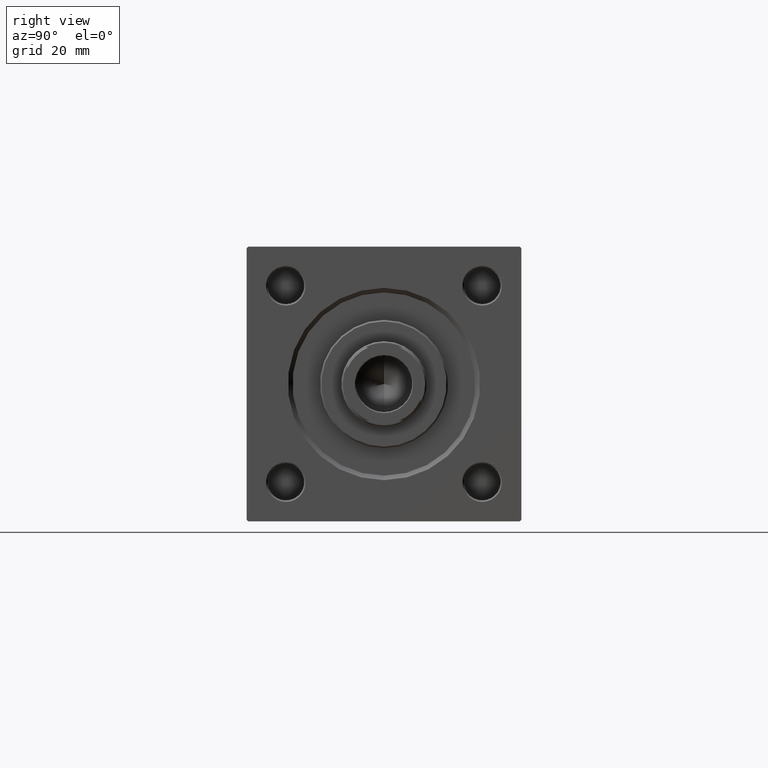
[diagram: clean part render]
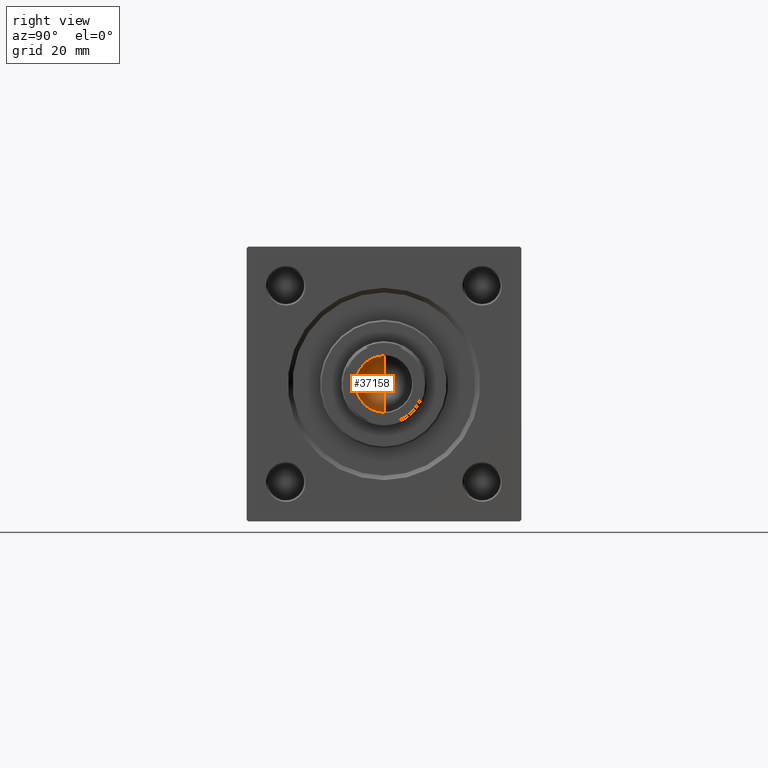
[diagram: same view with one face highlighted and labeled with its STEP entity id]
A machine part, right view. The second image highlights one B-rep face of the part: STEP entity #37158.
In plain terms, the highlighted conical surface has half-angle 59 deg.
Its self-contained STEP definition (entity closure, byte-faithful):
#1406 = LINE ( 'NONE', #20472, #24236 ) ;
#2275 = DIRECTION ( 'NONE',  ( 1.000000000000000000, 0.000000000000000000, 0.000000000000000000 ) ) ;
#3138 = VERTEX_POINT ( 'NONE', #11754 ) ;
#3510 = CARTESIAN_POINT ( 'NONE',  ( 0.000000000000000000, 0.000000000000000000, 114.9999999999999858 ) ) ;
#3806 = CARTESIAN_POINT ( 'NONE',  ( 9.249999999999994671, 0.000000000000000000, 114.9999999999999858 ) ) ;
#6561 = EDGE_CURVE ( 'NONE', #3138, #48343, #1406, .T. ) ;
#7413 = EDGE_LOOP ( 'NONE', ( #36063, #30304, #43435 ) ) ;
#9387 = CIRCLE ( 'NONE', #37782, 9.249999999999994671 ) ;
#9401 = CARTESIAN_POINT ( 'NONE',  ( 9.249999999999994671, 0.000000000000000000, 114.9999999999999858 ) ) ;
#11754 = CARTESIAN_POINT ( 'NONE',  ( -1.063698371622866236E-14, 0.000000000000000000, 109.4420392739950501 ) ) ;
#12850 = DIRECTION ( 'NONE',  ( -0.8571673007021117785, 1.049727191138617956E-16, 0.5150380749100550437 ) ) ;
#14187 = FACE_OUTER_BOUND ( 'NONE', #7413, .T. ) ;
#18764 = DIRECTION ( 'NONE',  ( -0.000000000000000000, -0.000000000000000000, 1.000000000000000000 ) ) ;
#19307 = DIRECTION ( 'NONE',  ( 0.8571673007021117785, 0.000000000000000000, 0.5150380749100550437 ) ) ;
#20472 = CARTESIAN_POINT ( 'NONE',  ( -9.249999999999994671, 1.132798289211300909E-15, 114.9999999999999858 ) ) ;
#21089 = DIRECTION ( 'NONE',  ( -0.000000000000000000, -0.000000000000000000, 1.000000000000000000 ) ) ;
#24236 = VECTOR ( 'NONE', #12850, 1000.000000000000000 ) ;
#25858 = DIRECTION ( 'NONE',  ( 1.000000000000000000, 0.000000000000000000, 0.000000000000000000 ) ) ;
#30304 = ORIENTED_EDGE ( 'NONE', *, *, #45048, .T. ) ;
#30990 = EDGE_CURVE ( 'NONE', #31098, #48343, #9387, .T. ) ;
#31098 = VERTEX_POINT ( 'NONE', #9401 ) ;
#32448 = VECTOR ( 'NONE', #19307, 1000.000000000000000 ) ;
#33131 = CONICAL_SURFACE ( 'NONE', #39616, 9.249999999999994671, 1.029744258676653423 ) ;
#35339 = CARTESIAN_POINT ( 'NONE',  ( -9.249999999999994671, 1.132798289211300909E-15, 114.9999999999999858 ) ) ;
#36063 = ORIENTED_EDGE ( 'NONE', *, *, #6561, .F. ) ;
#37066 = CARTESIAN_POINT ( 'NONE',  ( 0.000000000000000000, 0.000000000000000000, 114.9999999999999858 ) ) ;
#37158 = ADVANCED_FACE ( 'NONE', ( #14187 ), #33131, .F. ) ;
#37782 = AXIS2_PLACEMENT_3D ( 'NONE', #37066, #21089, #2275 ) ;
#38118 = LINE ( 'NONE', #3806, #32448 ) ;
#39616 = AXIS2_PLACEMENT_3D ( 'NONE', #3510, #18764, #25858 ) ;
#43435 = ORIENTED_EDGE ( 'NONE', *, *, #30990, .T. ) ;
#45048 = EDGE_CURVE ( 'NONE', #3138, #31098, #38118, .T. ) ;
#48343 = VERTEX_POINT ( 'NONE', #35339 ) ;